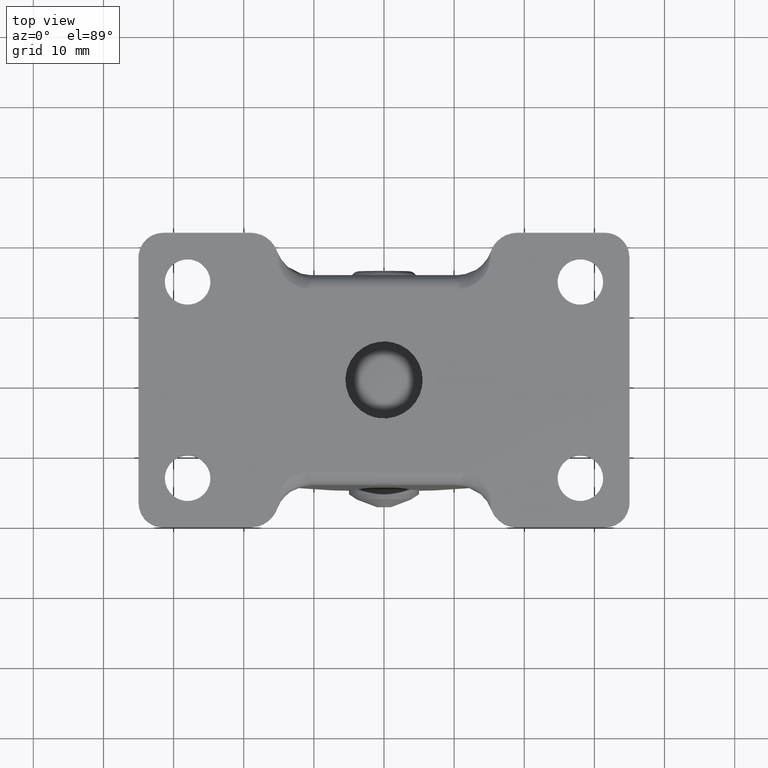
[diagram: clean part render]
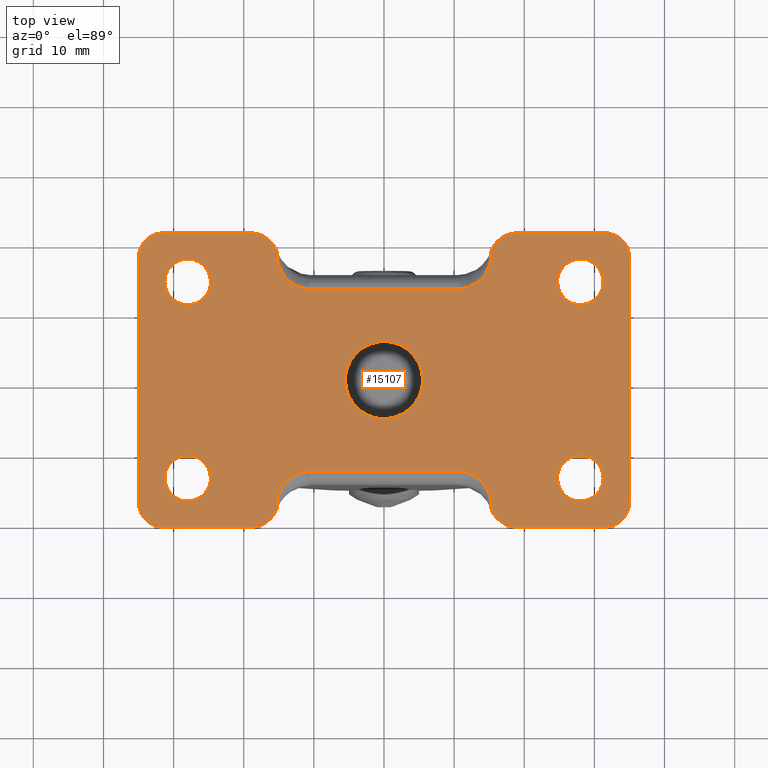
[diagram: same view with one face highlighted and labeled with its STEP entity id]
A machine part, top view. The second image highlights one B-rep face of the part: STEP entity #15107.
In plain terms, the highlighted face is a freeform B-spline surface patch.
Its self-contained STEP definition (entity closure, byte-faithful):
#9672=CARTESIAN_POINT('',(-28.383611263006621,10.772719039362141,54.500000000000000));
#9673=VERTEX_POINT('',#9672);
#9679=CARTESIAN_POINT('',(-24.750000000000000,13.999999999999821,54.500000000000000));
#9680=VERTEX_POINT('',#9679);
#9681=CARTESIAN_POINT('',(-28.383611263006618,10.772719039362146,54.500000000000000));
#9682=CARTESIAN_POINT('',(-28.192478389244791,10.749999999999821,54.500000000000000));
#9683=CARTESIAN_POINT('',(-28.0,10.749999999999821,54.500000000000000));
#9684=CARTESIAN_POINT('',(-24.750000000000000,10.749999999999821,54.500000000000000));
#9685=CARTESIAN_POINT('',(-24.750000000000000,13.999999999999821,54.500000000000000));
#9693=(BOUNDED_CURVE()B_SPLINE_CURVE(2,(#9681,#9682,#9683,#9684,#9685),.UNSPECIFIED.,.F.,.U.)B_SPLINE_CURVE_WITH_KNOTS((3,2,3),(0.229562473476667,0.250000000000000,0.500000000000000),.UNSPECIFIED.)CURVE()GEOMETRIC_REPRESENTATION_ITEM()RATIONAL_B_SPLINE_CURVE((0.956026754111489,0.976055948287983,1.0,0.707106781186547,1.0))REPRESENTATION_ITEM(''));
#9694=EDGE_CURVE('',#9673,#9680,#9693,.T.);
#9696=CARTESIAN_POINT('',(-27.801592246369129,17.243938094862170,54.500000000000000));
#9697=VERTEX_POINT('',#9696);
#9698=CARTESIAN_POINT('',(-24.750000000000000,13.999999999999821,54.500000000000000));
#9699=CARTESIAN_POINT('',(-24.750000000000004,17.057294717174052,54.500000000000007));
#9700=CARTESIAN_POINT('',(-27.801592246369129,17.243938094862163,54.500000000000000));
#9708=(BOUNDED_CURVE()B_SPLINE_CURVE(2,(#9698,#9699,#9700),.UNSPECIFIED.,.F.,.U.)B_SPLINE_CURVE_WITH_KNOTS((3,3),(0.500000000000000,0.739332962226799),.UNSPECIFIED.)CURVE()GEOMETRIC_REPRESENTATION_ITEM()RATIONAL_B_SPLINE_CURVE((1.0,0.719603993300937,0.976072041640692))REPRESENTATION_ITEM(''));
#9709=EDGE_CURVE('',#9680,#9697,#9708,.T.);
#9783=CARTESIAN_POINT('',(-31.250000000000000,13.999999999999821,54.500000000000000));
#9784=VERTEX_POINT('',#9783);
#9785=CARTESIAN_POINT('',(-27.801592246369122,17.243938094862166,54.499999999999993));
#9786=CARTESIAN_POINT('',(-27.900703519136602,17.249999999999822,54.499999999999993));
#9787=CARTESIAN_POINT('',(-28.0,17.249999999999819,54.500000000000000));
#9788=CARTESIAN_POINT('',(-31.250000000000004,17.249999999999826,54.500000000000000));
#9789=CARTESIAN_POINT('',(-31.250000000000000,13.999999999999821,54.500000000000000));
#9797=(BOUNDED_CURVE()B_SPLINE_CURVE(2,(#9785,#9786,#9787,#9788,#9789),.UNSPECIFIED.,.F.,.U.)B_SPLINE_CURVE_WITH_KNOTS((3,2,3),(0.739332962226800,0.750000000000000,1.0),.UNSPECIFIED.)CURVE()GEOMETRIC_REPRESENTATION_ITEM()RATIONAL_B_SPLINE_CURVE((0.976072041640693,0.987502787885611,1.0,0.707106781186547,1.0))REPRESENTATION_ITEM(''));
#9798=EDGE_CURVE('',#9697,#9784,#9797,.T.);
#9800=CARTESIAN_POINT('',(-31.250000000000000,13.999999999999821,54.500000000000000));
#9801=CARTESIAN_POINT('',(-31.250000000000000,11.113432791328290,54.500000000000000));
#9802=CARTESIAN_POINT('',(-28.383611263006618,10.772719039362146,54.500000000000000));
#9810=(BOUNDED_CURVE()B_SPLINE_CURVE(2,(#9800,#9801,#9802),.UNSPECIFIED.,.F.,.U.)B_SPLINE_CURVE_WITH_KNOTS((3,3),(0.0,0.229562473476667),.UNSPECIFIED.)CURVE()GEOMETRIC_REPRESENTATION_ITEM()RATIONAL_B_SPLINE_CURVE((1.0,0.731050832898565,0.956026754111489))REPRESENTATION_ITEM(''));
#9811=EDGE_CURVE('',#9784,#9673,#9810,.T.);
#9858=CARTESIAN_POINT('',(-0.649188295266815,-5.461552394446890,54.500000000000000));
#9859=VERTEX_POINT('',#9858);
#9865=CARTESIAN_POINT('',(5.500000000000000,0.0,54.500000000000000));
#9866=VERTEX_POINT('',#9865);
#9867=CARTESIAN_POINT('',(-0.649188295266815,-5.461552394446890,54.500000000000000));
#9868=CARTESIAN_POINT('',(-0.325732662789357,-5.500000000000000,54.500000000000007));
#9869=CARTESIAN_POINT('',(0.0,-5.500000000000000,54.500000000000000));
#9870=CARTESIAN_POINT('',(5.500000000000001,-5.500000000000001,54.500000000000014));
#9871=CARTESIAN_POINT('',(5.500000000000000,0.0,54.500000000000000));
#9879=(BOUNDED_CURVE()B_SPLINE_CURVE(2,(#9867,#9868,#9869,#9870,#9871),.UNSPECIFIED.,.F.,.U.)B_SPLINE_CURVE_WITH_KNOTS((3,2,3),(0.229562473227576,0.250000000000000,0.500000000000000),.UNSPECIFIED.)CURVE()GEOMETRIC_REPRESENTATION_ITEM()RATIONAL_B_SPLINE_CURVE((0.956026753623260,0.976055947996154,1.0,0.707106781186548,1.0))REPRESENTATION_ITEM(''));
#9880=EDGE_CURVE('',#9859,#9866,#9879,.T.);
#9882=CARTESIAN_POINT('',(0.335766967678533,5.489741391305784,54.500000000000000));
#9883=VERTEX_POINT('',#9882);
#9884=CARTESIAN_POINT('',(5.500000000000000,0.0,54.500000000000000));
#9885=CARTESIAN_POINT('',(5.500000000000001,5.173883367534092,54.500000000000014));
#9886=CARTESIAN_POINT('',(0.335766967678533,5.489741391305784,54.500000000000000));
#9894=(BOUNDED_CURVE()B_SPLINE_CURVE(2,(#9884,#9885,#9886),.UNSPECIFIED.,.F.,.U.)B_SPLINE_CURVE_WITH_KNOTS((3,3),(0.500000000000000,0.739332962227081),.UNSPECIFIED.)CURVE()GEOMETRIC_REPRESENTATION_ITEM()RATIONAL_B_SPLINE_CURVE((1.0,0.719603993300607,0.976072041641296))REPRESENTATION_ITEM(''));
#9895=EDGE_CURVE('',#9866,#9883,#9894,.T.);
#9969=CARTESIAN_POINT('',(-5.500000000000000,0.0,54.500000000000000));
#9970=VERTEX_POINT('',#9969);
#9971=CARTESIAN_POINT('',(0.335766967678533,5.489741391305784,54.500000000000000));
#9972=CARTESIAN_POINT('',(0.168040198379723,5.500000000000001,54.500000000000007));
#9973=CARTESIAN_POINT('',(0.0,5.500000000000000,54.500000000000000));
#9974=CARTESIAN_POINT('',(-5.500000000000001,5.500000000000001,54.500000000000014));
#9975=CARTESIAN_POINT('',(-5.500000000000000,0.0,54.500000000000000));
#9983=(BOUNDED_CURVE()B_SPLINE_CURVE(2,(#9971,#9972,#9973,#9974,#9975),.UNSPECIFIED.,.F.,.U.)B_SPLINE_CURVE_WITH_KNOTS((3,2,3),(0.739332962227081,0.750000000000000,1.0),.UNSPECIFIED.)CURVE()GEOMETRIC_REPRESENTATION_ITEM()RATIONAL_B_SPLINE_CURVE((0.976072041641296,0.987502787885941,1.0,0.707106781186548,1.0))REPRESENTATION_ITEM(''));
#9984=EDGE_CURVE('',#9883,#9970,#9983,.T.);
#9986=CARTESIAN_POINT('',(-5.500000000000000,0.0,54.500000000000000));
#9987=CARTESIAN_POINT('',(-5.500000000000001,-4.884959884347427,54.500000000000007));
#9988=CARTESIAN_POINT('',(-0.649188295266815,-5.461552394446890,54.500000000000000));
#9996=(BOUNDED_CURVE()B_SPLINE_CURVE(2,(#9986,#9987,#9988),.UNSPECIFIED.,.F.,.U.)B_SPLINE_CURVE_WITH_KNOTS((3,3),(0.0,0.229562473227576),.UNSPECIFIED.)CURVE()GEOMETRIC_REPRESENTATION_ITEM()RATIONAL_B_SPLINE_CURVE((1.0,0.731050833190393,0.956026753623260))REPRESENTATION_ITEM(''));
#9997=EDGE_CURVE('',#9970,#9859,#9996,.T.);
#10044=CARTESIAN_POINT('',(27.616388736993379,10.772719039362141,54.500000000000000));
#10045=VERTEX_POINT('',#10044);
#10051=CARTESIAN_POINT('',(31.250000000000000,13.999999999999821,54.500000000000000));
#10052=VERTEX_POINT('',#10051);
#10053=CARTESIAN_POINT('',(27.616388736993382,10.772719039362146,54.500000000000000));
#10054=CARTESIAN_POINT('',(27.807521610755206,10.749999999999821,54.500000000000000));
#10055=CARTESIAN_POINT('',(28.0,10.749999999999821,54.500000000000000));
#10056=CARTESIAN_POINT('',(31.250000000000004,10.749999999999821,54.500000000000000));
#10057=CARTESIAN_POINT('',(31.250000000000000,13.999999999999821,54.500000000000000));
#10065=(BOUNDED_CURVE()B_SPLINE_CURVE(2,(#10053,#10054,#10055,#10056,#10057),.UNSPECIFIED.,.F.,.U.)B_SPLINE_CURVE_WITH_KNOTS((3,2,3),(0.229562473476667,0.250000000000000,0.500000000000000),.UNSPECIFIED.)CURVE()GEOMETRIC_REPRESENTATION_ITEM()RATIONAL_B_SPLINE_CURVE((0.956026754111489,0.976055948287983,1.0,0.707106781186547,1.0))REPRESENTATION_ITEM(''));
#10066=EDGE_CURVE('',#10045,#10052,#10065,.T.);
#10068=CARTESIAN_POINT('',(28.198407753630882,17.243938094862170,54.500000000000000));
#10069=VERTEX_POINT('',#10068);
#10070=CARTESIAN_POINT('',(31.250000000000000,13.999999999999821,54.500000000000000));
#10071=CARTESIAN_POINT('',(31.250000000000000,17.057294717174052,54.500000000000007));
#10072=CARTESIAN_POINT('',(28.198407753630878,17.243938094862163,54.500000000000000));
#10080=(BOUNDED_CURVE()B_SPLINE_CURVE(2,(#10070,#10071,#10072),.UNSPECIFIED.,.F.,.U.)B_SPLINE_CURVE_WITH_KNOTS((3,3),(0.500000000000000,0.739332962226799),.UNSPECIFIED.)CURVE()GEOMETRIC_REPRESENTATION_ITEM()RATIONAL_B_SPLINE_CURVE((1.0,0.719603993300937,0.976072041640692))REPRESENTATION_ITEM(''));
#10081=EDGE_CURVE('',#10052,#10069,#10080,.T.);
#10155=CARTESIAN_POINT('',(24.750000000000000,13.999999999999821,54.500000000000000));
#10156=VERTEX_POINT('',#10155);
#10157=CARTESIAN_POINT('',(28.198407753630878,17.243938094862166,54.499999999999993));
#10158=CARTESIAN_POINT('',(28.099296480863401,17.249999999999822,54.499999999999993));
#10159=CARTESIAN_POINT('',(28.0,17.249999999999819,54.500000000000000));
#10160=CARTESIAN_POINT('',(24.750000000000000,17.249999999999826,54.500000000000000));
#10161=CARTESIAN_POINT('',(24.750000000000000,13.999999999999821,54.500000000000000));
#10169=(BOUNDED_CURVE()B_SPLINE_CURVE(2,(#10157,#10158,#10159,#10160,#10161),.UNSPECIFIED.,.F.,.U.)B_SPLINE_CURVE_WITH_KNOTS((3,2,3),(0.739332962226800,0.750000000000000,1.0),.UNSPECIFIED.)CURVE()GEOMETRIC_REPRESENTATION_ITEM()RATIONAL_B_SPLINE_CURVE((0.976072041640693,0.987502787885611,1.0,0.707106781186547,1.0))REPRESENTATION_ITEM(''));
#10170=EDGE_CURVE('',#10069,#10156,#10169,.T.);
#10172=CARTESIAN_POINT('',(24.750000000000000,13.999999999999821,54.500000000000000));
#10173=CARTESIAN_POINT('',(24.749999999999996,11.113432791328291,54.500000000000000));
#10174=CARTESIAN_POINT('',(27.616388736993382,10.772719039362146,54.500000000000000));
#10182=(BOUNDED_CURVE()B_SPLINE_CURVE(2,(#10172,#10173,#10174),.UNSPECIFIED.,.F.,.U.)B_SPLINE_CURVE_WITH_KNOTS((3,3),(0.0,0.229562473476667),.UNSPECIFIED.)CURVE()GEOMETRIC_REPRESENTATION_ITEM()RATIONAL_B_SPLINE_CURVE((1.0,0.731050832898565,0.956026754111489))REPRESENTATION_ITEM(''));
#10183=EDGE_CURVE('',#10156,#10045,#10182,.T.);
#10230=CARTESIAN_POINT('',(27.616388736993379,-17.227280960637682,54.500000000000000));
#10231=VERTEX_POINT('',#10230);
#10237=CARTESIAN_POINT('',(31.250000000000000,-14.0,54.500000000000000));
#10238=VERTEX_POINT('',#10237);
#10239=CARTESIAN_POINT('',(27.616388736993386,-17.227280960637678,54.500000000000000));
#10240=CARTESIAN_POINT('',(27.807521610755209,-17.250000000000000,54.500000000000000));
#10241=CARTESIAN_POINT('',(28.0,-17.250000000000000,54.500000000000000));
#10242=CARTESIAN_POINT('',(31.250000000000004,-17.249999999999996,54.500000000000000));
#10243=CARTESIAN_POINT('',(31.250000000000000,-14.0,54.500000000000000));
#10251=(BOUNDED_CURVE()B_SPLINE_CURVE(2,(#10239,#10240,#10241,#10242,#10243),.UNSPECIFIED.,.F.,.U.)B_SPLINE_CURVE_WITH_KNOTS((3,2,3),(0.229562473476667,0.250000000000000,0.500000000000000),.UNSPECIFIED.)CURVE()GEOMETRIC_REPRESENTATION_ITEM()RATIONAL_B_SPLINE_CURVE((0.956026754111489,0.976055948287983,1.0,0.707106781186547,1.0))REPRESENTATION_ITEM(''));
#10252=EDGE_CURVE('',#10231,#10238,#10251,.T.);
#10254=CARTESIAN_POINT('',(28.198407753630882,-10.756061905137649,54.500000000000000));
#10255=VERTEX_POINT('',#10254);
#10256=CARTESIAN_POINT('',(31.250000000000000,-14.0,54.500000000000000));
#10257=CARTESIAN_POINT('',(31.250000000000000,-10.942705282825770,54.500000000000007));
#10258=CARTESIAN_POINT('',(28.198407753630878,-10.756061905137656,54.500000000000000));
#10266=(BOUNDED_CURVE()B_SPLINE_CURVE(2,(#10256,#10257,#10258),.UNSPECIFIED.,.F.,.U.)B_SPLINE_CURVE_WITH_KNOTS((3,3),(0.500000000000000,0.739332962226799),.UNSPECIFIED.)CURVE()GEOMETRIC_REPRESENTATION_ITEM()RATIONAL_B_SPLINE_CURVE((1.0,0.719603993300937,0.976072041640692))REPRESENTATION_ITEM(''));
#10267=EDGE_CURVE('',#10238,#10255,#10266,.T.);
#10341=CARTESIAN_POINT('',(24.750000000000000,-14.0,54.500000000000000));
#10342=VERTEX_POINT('',#10341);
#10343=CARTESIAN_POINT('',(28.198407753630878,-10.756061905137656,54.499999999999993));
#10344=CARTESIAN_POINT('',(28.099296480863401,-10.750000000000004,54.499999999999993));
#10345=CARTESIAN_POINT('',(28.0,-10.750000000000000,54.500000000000000));
#10346=CARTESIAN_POINT('',(24.750000000000000,-10.750000000000000,54.500000000000000));
#10347=CARTESIAN_POINT('',(24.750000000000000,-14.0,54.500000000000000));
#10355=(BOUNDED_CURVE()B_SPLINE_CURVE(2,(#10343,#10344,#10345,#10346,#10347),.UNSPECIFIED.,.F.,.U.)B_SPLINE_CURVE_WITH_KNOTS((3,2,3),(0.739332962226800,0.750000000000000,1.0),.UNSPECIFIED.)CURVE()GEOMETRIC_REPRESENTATION_ITEM()RATIONAL_B_SPLINE_CURVE((0.976072041640693,0.987502787885611,1.0,0.707106781186547,1.0))REPRESENTATION_ITEM(''));
#10356=EDGE_CURVE('',#10255,#10342,#10355,.T.);
#10358=CARTESIAN_POINT('',(24.750000000000000,-14.0,54.500000000000000));
#10359=CARTESIAN_POINT('',(24.750000000000000,-16.886567208671533,54.500000000000000));
#10360=CARTESIAN_POINT('',(27.616388736993379,-17.227280960637678,54.499999999999993));
#10368=(BOUNDED_CURVE()B_SPLINE_CURVE(2,(#10358,#10359,#10360),.UNSPECIFIED.,.F.,.U.)B_SPLINE_CURVE_WITH_KNOTS((3,3),(0.0,0.229562473476667),.UNSPECIFIED.)CURVE()GEOMETRIC_REPRESENTATION_ITEM()RATIONAL_B_SPLINE_CURVE((1.0,0.731050832898564,0.956026754111489))REPRESENTATION_ITEM(''));
#10369=EDGE_CURVE('',#10342,#10231,#10368,.T.);
#10416=CARTESIAN_POINT('',(-28.383611263006621,-17.227280960637682,54.500000000000000));
#10417=VERTEX_POINT('',#10416);
#10423=CARTESIAN_POINT('',(-24.750000000000000,-14.0,54.500000000000000));
#10424=VERTEX_POINT('',#10423);
#10425=CARTESIAN_POINT('',(-28.383611263006621,-17.227280960637678,54.499999999999993));
#10426=CARTESIAN_POINT('',(-28.192478389244798,-17.250000000000004,54.500000000000007));
#10427=CARTESIAN_POINT('',(-28.0,-17.250000000000000,54.500000000000000));
#10428=CARTESIAN_POINT('',(-24.750000000000000,-17.249999999999996,54.500000000000000));
#10429=CARTESIAN_POINT('',(-24.750000000000000,-14.0,54.500000000000000));
#10437=(BOUNDED_CURVE()B_SPLINE_CURVE(2,(#10425,#10426,#10427,#10428,#10429),.UNSPECIFIED.,.F.,.U.)B_SPLINE_CURVE_WITH_KNOTS((3,2,3),(0.229562473476667,0.250000000000000,0.500000000000000),.UNSPECIFIED.)CURVE()GEOMETRIC_REPRESENTATION_ITEM()RATIONAL_B_SPLINE_CURVE((0.956026754111489,0.976055948287983,1.0,0.707106781186547,1.0))REPRESENTATION_ITEM(''));
#10438=EDGE_CURVE('',#10417,#10424,#10437,.T.);
#10440=CARTESIAN_POINT('',(-27.801592246369129,-10.756061905137649,54.500000000000000));
#10441=VERTEX_POINT('',#10440);
#10442=CARTESIAN_POINT('',(-24.750000000000000,-14.0,54.500000000000000));
#10443=CARTESIAN_POINT('',(-24.750000000000004,-10.942705282825770,54.500000000000007));
#10444=CARTESIAN_POINT('',(-27.801592246369129,-10.756061905137656,54.500000000000000));
#10452=(BOUNDED_CURVE()B_SPLINE_CURVE(2,(#10442,#10443,#10444),.UNSPECIFIED.,.F.,.U.)B_SPLINE_CURVE_WITH_KNOTS((3,3),(0.500000000000000,0.739332962226799),.UNSPECIFIED.)CURVE()GEOMETRIC_REPRESENTATION_ITEM()RATIONAL_B_SPLINE_CURVE((1.0,0.719603993300937,0.976072041640692))REPRESENTATION_ITEM(''));
#10453=EDGE_CURVE('',#10424,#10441,#10452,.T.);
#10527=CARTESIAN_POINT('',(-31.250000000000000,-14.0,54.500000000000000));
#10528=VERTEX_POINT('',#10527);
#10529=CARTESIAN_POINT('',(-27.801592246369122,-10.756061905137656,54.499999999999993));
#10530=CARTESIAN_POINT('',(-27.900703519136602,-10.750000000000004,54.499999999999993));
#10531=CARTESIAN_POINT('',(-28.0,-10.750000000000000,54.500000000000000));
#10532=CARTESIAN_POINT('',(-31.250000000000004,-10.750000000000000,54.500000000000000));
#10533=CARTESIAN_POINT('',(-31.250000000000000,-14.0,54.500000000000000));
#10541=(BOUNDED_CURVE()B_SPLINE_CURVE(2,(#10529,#10530,#10531,#10532,#10533),.UNSPECIFIED.,.F.,.U.)B_SPLINE_CURVE_WITH_KNOTS((3,2,3),(0.739332962226800,0.750000000000000,1.0),.UNSPECIFIED.)CURVE()GEOMETRIC_REPRESENTATION_ITEM()RATIONAL_B_SPLINE_CURVE((0.976072041640693,0.987502787885611,1.0,0.707106781186547,1.0))REPRESENTATION_ITEM(''));
#10542=EDGE_CURVE('',#10441,#10528,#10541,.T.);
#10544=CARTESIAN_POINT('',(-31.250000000000000,-14.0,54.500000000000000));
#10545=CARTESIAN_POINT('',(-31.250000000000004,-16.886567208671533,54.500000000000000));
#10546=CARTESIAN_POINT('',(-28.383611263006618,-17.227280960637682,54.500000000000000));
#10554=(BOUNDED_CURVE()B_SPLINE_CURVE(2,(#10544,#10545,#10546),.UNSPECIFIED.,.F.,.U.)B_SPLINE_CURVE_WITH_KNOTS((3,3),(0.0,0.229562473476667),.UNSPECIFIED.)CURVE()GEOMETRIC_REPRESENTATION_ITEM()RATIONAL_B_SPLINE_CURVE((1.0,0.731050832898564,0.956026754111489))REPRESENTATION_ITEM(''));
#10555=EDGE_CURVE('',#10528,#10417,#10554,.T.);
#12311=CARTESIAN_POINT('',(-15.228765913306200,18.333339215413350,54.500000000000000));
#12312=VERTEX_POINT('',#12311);
#12340=CARTESIAN_POINT('',(-10.514711081367540,13.0,54.500000000000000));
#12341=VERTEX_POINT('',#12340);
#12342=CARTESIAN_POINT('',(-10.514711081367540,13.0,54.500000000000000));
#12343=CARTESIAN_POINT('',(-11.581971825455341,13.000214138864351,54.500000000000000));
#12344=CARTESIAN_POINT('',(-12.580773533342651,13.499428649971261,54.500000000000000));
#12345=CARTESIAN_POINT('',(-13.540841397550929,13.979283465672310,54.500000000000000));
#12346=CARTESIAN_POINT('',(-14.195327010071420,14.794834309048600,54.500000000000000));
#12347=CARTESIAN_POINT('',(-14.810590144845690,15.561510243346190,54.500000000000000));
#12348=CARTESIAN_POINT('',(-15.079617698688660,16.539096097954811,54.500000000000000));
#12349=CARTESIAN_POINT('',(-15.329726715057991,17.447936226112748,54.500000000000000));
#12350=CARTESIAN_POINT('',(-15.228765913306200,18.333339215413350,54.500000000000000));
#12351=B_SPLINE_CURVE_WITH_KNOTS('',2,(#12342,#12343,#12344,#12345,#12346,#12347,#12348,#12349,#12350),.UNSPECIFIED.,.F.,.U.,(3,2,2,2,3),(0.0,0.250000000000000,0.500000000000000,0.750000000000000,1.0),.UNSPECIFIED.);
#12352=EDGE_CURVE('',#12341,#12312,#12351,.T.);
#12380=CARTESIAN_POINT('',(10.514709999999999,13.0,54.500000000000000));
#12381=VERTEX_POINT('',#12380);
#12403=CARTESIAN_POINT('',(10.514709999999999,13.0,54.500000000000000));
#12404=CARTESIAN_POINT('',(-10.514711081367540,13.0,54.500000000000000));
#12405=QUASI_UNIFORM_CURVE('',1,(#12403,#12404),.UNSPECIFIED.,.F.,.U.);
#12406=EDGE_CURVE('',#12381,#12341,#12405,.T.);
#12437=CARTESIAN_POINT('',(15.228760706250251,18.333348183459801,54.500000000000000));
#12438=VERTEX_POINT('',#12437);
#12439=CARTESIAN_POINT('',(15.228760706250251,18.333348183459801,54.500000000000000));
#12440=CARTESIAN_POINT('',(15.329635687253081,17.448708875707322,54.500000000000007));
#12441=CARTESIAN_POINT('',(15.079614982359850,16.539104090093200,54.500000000000000));
#12442=CARTESIAN_POINT('',(14.811309808526740,15.562978251923850,54.500000000000000));
#12443=CARTESIAN_POINT('',(14.195326207737100,14.794840124324359,54.500000000000000));
#12444=CARTESIAN_POINT('',(13.542195608990760,13.980379293620720,54.500000000000000));
#12445=CARTESIAN_POINT('',(12.580773310062300,13.499431567280499,54.500000000000000));
#12446=CARTESIAN_POINT('',(11.582832560932880,13.000215629756520,54.500000000000000));
#12447=CARTESIAN_POINT('',(10.514709999999999,13.0,54.500000000000000));
#12448=B_SPLINE_CURVE_WITH_KNOTS('',2,(#12439,#12440,#12441,#12442,#12443,#12444,#12445,#12446,#12447),.UNSPECIFIED.,.F.,.U.,(3,2,2,2,3),(0.000000014380785,0.250000000000000,0.500000000000000,0.750000000000000,1.0),.UNSPECIFIED.);
#12449=EDGE_CURVE('',#12438,#12381,#12448,.T.);
#12505=CARTESIAN_POINT('',(-10.514711081367521,-13.0,54.500000000000000));
#12506=VERTEX_POINT('',#12505);
#12516=CARTESIAN_POINT('',(-15.228764935478599,-18.333332562780399,54.500000000000000));
#12517=VERTEX_POINT('',#12516);
#12518=CARTESIAN_POINT('',(-15.228764935478599,-18.333332562780399,54.500000000000000));
#12519=CARTESIAN_POINT('',(-15.329637651343401,-17.448694153979350,54.500000000000000));
#12520=CARTESIAN_POINT('',(-15.079615267566449,-16.539091237617800,54.500000000000000));
#12521=CARTESIAN_POINT('',(-14.811308303795320,-15.562967448061100,54.500000000000000));
#12522=CARTESIAN_POINT('',(-14.195324224741700,-14.794831651059340,54.500000000000000));
#12523=CARTESIAN_POINT('',(-13.542193115301000,-13.980373287025619,54.500000000000000));
#12524=CARTESIAN_POINT('',(-12.580771690475119,-13.499427844222479,54.500000000000000));
#12525=CARTESIAN_POINT('',(-11.582831831504880,-13.000214268396180,54.500000000000000));
#12526=CARTESIAN_POINT('',(-10.514711081367521,-13.0,54.500000000000000));
#12527=B_SPLINE_CURVE_WITH_KNOTS('',2,(#12518,#12519,#12520,#12521,#12522,#12523,#12524,#12525,#12526),.UNSPECIFIED.,.F.,.U.,(3,2,2,2,3),(0.0,0.250000000000000,0.500000000000000,0.750000000000000,1.0),.UNSPECIFIED.);
#12528=EDGE_CURVE('',#12517,#12506,#12527,.T.);
#12571=CARTESIAN_POINT('',(10.514709999999999,-13.0,54.500000000000000));
#12572=VERTEX_POINT('',#12571);
#12586=CARTESIAN_POINT('',(-10.514711081367521,-13.0,54.500000000000000));
#12587=CARTESIAN_POINT('',(10.514709999999999,-13.0,54.500000000000000));
#12588=QUASI_UNIFORM_CURVE('',1,(#12586,#12587),.UNSPECIFIED.,.F.,.U.);
#12589=EDGE_CURVE('',#12506,#12572,#12588,.T.);
#12626=CARTESIAN_POINT('',(15.228760485757951,-18.333348261415651,54.500000000000000));
#12627=VERTEX_POINT('',#12626);
#12653=CARTESIAN_POINT('',(10.514709999999999,-13.0,54.500000000000000));
#12654=CARTESIAN_POINT('',(11.581971513306099,-13.000215455932620,54.500000000000000));
#12655=CARTESIAN_POINT('',(12.580773310062540,-13.499431567280720,54.500000000000000));
#12656=CARTESIAN_POINT('',(13.540841265657040,-13.979287924145799,54.500000000000000));
#12657=CARTESIAN_POINT('',(14.195326207737541,-14.794840124324679,54.500000000000000));
#12658=CARTESIAN_POINT('',(14.810588713461300,-15.561517335622350,54.500000000000000));
#12659=CARTESIAN_POINT('',(15.079614982360299,-16.539104090093801,54.500000000000000));
#12660=CARTESIAN_POINT('',(15.329722805398101,-17.447945059386949,54.500000000000000));
#12661=CARTESIAN_POINT('',(15.228760485757951,-18.333348261415651,54.500000000000000));
#12662=B_SPLINE_CURVE_WITH_KNOTS('',2,(#12653,#12654,#12655,#12656,#12657,#12658,#12659,#12660,#12661),.UNSPECIFIED.,.F.,.U.,(3,2,2,2,3),(0.0,0.250000000000000,0.500000000000000,0.750000000000000,1.0),.UNSPECIFIED.);
#12663=EDGE_CURVE('',#12572,#12627,#12662,.T.);
#13986=CARTESIAN_POINT('',(18.989575114206499,-21.0,54.500000000000000));
#13987=VERTEX_POINT('',#13986);
#13993=CARTESIAN_POINT('',(15.228760485757951,-18.333348261415651,54.500000000000000));
#13994=CARTESIAN_POINT('',(16.168967375558246,-20.992651369762061,54.499999999999993));
#13995=CARTESIAN_POINT('',(18.989575114206499,-21.0,54.500000000000000));
#14003=(BOUNDED_CURVE()B_SPLINE_CURVE(2,(#13993,#13994,#13995),.UNSPECIFIED.,.F.,.U.)CURVE()GEOMETRIC_REPRESENTATION_ITEM()QUASI_UNIFORM_CURVE()RATIONAL_B_SPLINE_CURVE((1.0,0.817248079286618,1.0))REPRESENTATION_ITEM(''));
#14004=EDGE_CURVE('',#12627,#13987,#14003,.T.);
#14023=CARTESIAN_POINT('',(-19.0,-21.0,54.500000000000000));
#14024=VERTEX_POINT('',#14023);
#14032=CARTESIAN_POINT('',(-19.0,-21.0,54.500000000000000));
#14033=CARTESIAN_POINT('',(-16.171573216614878,-20.999999784059309,54.500000000000000));
#14034=CARTESIAN_POINT('',(-15.228764935478599,-18.333332562780399,54.500000000000000));
#14042=(BOUNDED_CURVE()B_SPLINE_CURVE(2,(#14032,#14033,#14034),.UNSPECIFIED.,.F.,.U.)CURVE()GEOMETRIC_REPRESENTATION_ITEM()QUASI_UNIFORM_CURVE()RATIONAL_B_SPLINE_CURVE((1.0,0.816496555003584,1.0))REPRESENTATION_ITEM(''));
#14043=EDGE_CURVE('',#14024,#12517,#14042,.T.);
#14135=CARTESIAN_POINT('',(18.989575114143950,21.0,54.500000000000000));
#14136=VERTEX_POINT('',#14135);
#14137=CARTESIAN_POINT('',(18.989575114143950,20.999999999999979,54.500000000000000));
#14138=CARTESIAN_POINT('',(16.168967375542664,20.992651369717915,54.500000000000007));
#14139=CARTESIAN_POINT('',(15.228760706250270,18.333348183459790,54.500000000000000));
#14147=(BOUNDED_CURVE()B_SPLINE_CURVE(2,(#14137,#14138,#14139),.UNSPECIFIED.,.F.,.U.)CURVE()GEOMETRIC_REPRESENTATION_ITEM()QUASI_UNIFORM_CURVE()RATIONAL_B_SPLINE_CURVE((1.0,0.817248079291126,1.0))REPRESENTATION_ITEM(''));
#14148=EDGE_CURVE('',#14136,#12438,#14147,.T.);
#14174=CARTESIAN_POINT('',(-19.0,21.0,54.500000000000000));
#14175=VERTEX_POINT('',#14174);
#14181=CARTESIAN_POINT('',(-15.228765913306241,18.333339215413339,54.500000000000000));
#14182=CARTESIAN_POINT('',(-16.171577554418512,21.0,54.500000000000000));
#14183=CARTESIAN_POINT('',(-19.0,21.0,54.500000000000000));
#14191=(BOUNDED_CURVE()B_SPLINE_CURVE(2,(#14181,#14182,#14183),.UNSPECIFIED.,.F.,.U.)CURVE()GEOMETRIC_REPRESENTATION_ITEM()QUASI_UNIFORM_CURVE()RATIONAL_B_SPLINE_CURVE((1.0,0.816497031180559,1.0))REPRESENTATION_ITEM(''));
#14192=EDGE_CURVE('',#12312,#14175,#14191,.T.);
#14416=CARTESIAN_POINT('',(-31.500000000000000,-21.0,54.500000000000000));
#14417=VERTEX_POINT('',#14416);
#14418=CARTESIAN_POINT('',(-19.0,-21.0,54.500000000000000));
#14419=CARTESIAN_POINT('',(-31.500000000000000,-21.0,54.500000000000000));
#14420=QUASI_UNIFORM_CURVE('',1,(#14418,#14419),.UNSPECIFIED.,.F.,.U.);
#14421=EDGE_CURVE('',#14024,#14417,#14420,.T.);
#14677=CARTESIAN_POINT('',(-31.499998900442598,21.0,54.500000000000000));
#14678=VERTEX_POINT('',#14677);
#14685=CARTESIAN_POINT('',(-35.0,17.500000000000000,54.500000000000000));
#14686=VERTEX_POINT('',#14685);
#14692=CARTESIAN_POINT('',(-31.499998900442598,21.0,54.500000000000000));
#14693=CARTESIAN_POINT('',(-32.949746690801277,21.000000455451517,54.500000000000000));
#14694=CARTESIAN_POINT('',(-33.974873345400631,19.974874122905138,54.500000000000000));
#14695=CARTESIAN_POINT('',(-35.0,18.949747790358749,54.500000000000000));
#14696=CARTESIAN_POINT('',(-35.0,17.500000000000000,54.500000000000000));
#14704=(BOUNDED_CURVE()B_SPLINE_CURVE(2,(#14692,#14693,#14694,#14695,#14696),.UNSPECIFIED.,.F.,.U.)B_SPLINE_CURVE_WITH_KNOTS((3,2,3),(0.0,0.500000000000000,1.0),.UNSPECIFIED.)CURVE()GEOMETRIC_REPRESENTATION_ITEM()RATIONAL_B_SPLINE_CURVE((1.0,0.923879502455398,1.0,0.923879502455398,1.0))REPRESENTATION_ITEM(''));
#14705=EDGE_CURVE('',#14678,#14686,#14704,.T.);
#14724=CARTESIAN_POINT('',(-35.0,-17.499998778269600,54.500000000000000));
#14725=VERTEX_POINT('',#14724);
#14733=CARTESIAN_POINT('',(-35.0,-17.499998778269600,54.500000000000000));
#14734=CARTESIAN_POINT('',(-35.000000506057212,-18.949746604411910,54.500000000000007));
#14735=CARTESIAN_POINT('',(-33.974874166099802,-19.974873302205960,54.500000000000000));
#14736=CARTESIAN_POINT('',(-32.949747826142392,-21.0,54.500000000000007));
#14737=CARTESIAN_POINT('',(-31.500000000000000,-21.0,54.500000000000000));
#14745=(BOUNDED_CURVE()B_SPLINE_CURVE(2,(#14733,#14734,#14735,#14736,#14737),.UNSPECIFIED.,.F.,.U.)B_SPLINE_CURVE_WITH_KNOTS((3,2,3),(0.0,0.500000000000000,1.0),.UNSPECIFIED.)CURVE()GEOMETRIC_REPRESENTATION_ITEM()RATIONAL_B_SPLINE_CURVE((1.0,0.923879499115856,1.0,0.923879499115856,1.0))REPRESENTATION_ITEM(''));
#14746=EDGE_CURVE('',#14725,#14417,#14745,.T.);
#14765=CARTESIAN_POINT('',(31.500000000000000,-21.0,54.500000000000000));
#14766=VERTEX_POINT('',#14765);
#14773=CARTESIAN_POINT('',(35.0,-17.500000000000000,54.500000000000000));
#14774=VERTEX_POINT('',#14773);
#14780=CARTESIAN_POINT('',(31.500000000000000,-21.0,54.500000000000000));
#14781=CARTESIAN_POINT('',(35.0,-21.000000000000007,54.500000000000000));
#14782=CARTESIAN_POINT('',(35.0,-17.500000000000000,54.500000000000000));
#14790=(BOUNDED_CURVE()B_SPLINE_CURVE(2,(#14780,#14781,#14782),.UNSPECIFIED.,.F.,.U.)CURVE()GEOMETRIC_REPRESENTATION_ITEM()QUASI_UNIFORM_CURVE()RATIONAL_B_SPLINE_CURVE((1.0,0.707106781186547,1.0))REPRESENTATION_ITEM(''));
#14791=EDGE_CURVE('',#14766,#14774,#14790,.T.);
#14810=CARTESIAN_POINT('',(35.0,17.500000000000000,54.500000000000000));
#14811=VERTEX_POINT('',#14810);
#14818=CARTESIAN_POINT('',(31.500000000000000,21.0,54.500000000000000));
#14819=VERTEX_POINT('',#14818);
#14825=CARTESIAN_POINT('',(35.0,17.500000000000000,54.500000000000000));
#14826=CARTESIAN_POINT('',(35.0,21.000000000000007,54.500000000000000));
#14827=CARTESIAN_POINT('',(31.500000000000000,21.0,54.500000000000000));
#14835=(BOUNDED_CURVE()B_SPLINE_CURVE(2,(#14825,#14826,#14827),.UNSPECIFIED.,.F.,.U.)CURVE()GEOMETRIC_REPRESENTATION_ITEM()QUASI_UNIFORM_CURVE()RATIONAL_B_SPLINE_CURVE((1.0,0.707106781186547,1.0))REPRESENTATION_ITEM(''));
#14836=EDGE_CURVE('',#14811,#14819,#14835,.T.);
#14848=CARTESIAN_POINT('',(-35.0,-17.499998778269600,54.500000000000000));
#14849=CARTESIAN_POINT('',(-35.0,17.500000000000000,54.500000000000000));
#14850=QUASI_UNIFORM_CURVE('',1,(#14848,#14849),.UNSPECIFIED.,.F.,.U.);
#14851=EDGE_CURVE('',#14725,#14686,#14850,.T.);
#14864=CARTESIAN_POINT('',(35.0,17.500000000000000,54.500000000000000));
#14865=CARTESIAN_POINT('',(35.0,-17.500000000000000,54.500000000000000));
#14866=QUASI_UNIFORM_CURVE('',1,(#14864,#14865),.UNSPECIFIED.,.F.,.U.);
#14867=EDGE_CURVE('',#14811,#14774,#14866,.T.);
#14879=CARTESIAN_POINT('',(18.989575114143950,21.0,54.500000000000000));
#14880=CARTESIAN_POINT('',(31.500000000000000,21.0,54.500000000000000));
#14881=QUASI_UNIFORM_CURVE('',1,(#14879,#14880),.UNSPECIFIED.,.F.,.U.);
#14882=EDGE_CURVE('',#14136,#14819,#14881,.T.);
#14903=CARTESIAN_POINT('',(-31.499998900442598,21.0,54.500000000000000));
#14904=CARTESIAN_POINT('',(-19.0,21.0,54.500000000000000));
#14905=QUASI_UNIFORM_CURVE('',1,(#14903,#14904),.UNSPECIFIED.,.F.,.U.);
#14906=EDGE_CURVE('',#14678,#14175,#14905,.T.);
#14982=CARTESIAN_POINT('',(31.500000000000000,-21.0,54.500000000000000));
#14983=CARTESIAN_POINT('',(18.989575114206499,-21.0,54.500000000000000));
#14984=QUASI_UNIFORM_CURVE('',1,(#14982,#14983),.UNSPECIFIED.,.F.,.U.);
#14985=EDGE_CURVE('',#14766,#13987,#14984,.T.);
#15050=CARTESIAN_POINT('',(-38.496499864326417,23.097899918595861,54.500000000000000));
#15051=CARTESIAN_POINT('',(38.496501741872727,23.097899918595861,54.500000000000000));
#15052=CARTESIAN_POINT('',(-38.496499864326417,-23.097901045123638,54.500000000000000));
#15053=CARTESIAN_POINT('',(38.496501741872727,-23.097901045123638,54.500000000000000));
#15054=B_SPLINE_SURFACE_WITH_KNOTS('',1,1,((#15050,#15052),(#15051,#15053)),.UNSPECIFIED.,.F.,.F.,.U.,(2,2),(2,2),(0.0,76.993001606199158),(0.0,46.195800963719492),.UNSPECIFIED.);
#15055=ORIENTED_EDGE('',*,*,#12406,.T.);
#15056=ORIENTED_EDGE('',*,*,#12352,.T.);
#15057=ORIENTED_EDGE('',*,*,#14192,.T.);
#15058=ORIENTED_EDGE('',*,*,#14906,.F.);
#15059=ORIENTED_EDGE('',*,*,#14705,.T.);
#15060=ORIENTED_EDGE('',*,*,#14851,.F.);
#15061=ORIENTED_EDGE('',*,*,#14746,.T.);
#15062=ORIENTED_EDGE('',*,*,#14421,.F.);
#15063=ORIENTED_EDGE('',*,*,#14043,.T.);
#15064=ORIENTED_EDGE('',*,*,#12528,.T.);
#15065=ORIENTED_EDGE('',*,*,#12589,.T.);
#15066=ORIENTED_EDGE('',*,*,#12663,.T.);
#15067=ORIENTED_EDGE('',*,*,#14004,.T.);
#15068=ORIENTED_EDGE('',*,*,#14985,.F.);
#15069=ORIENTED_EDGE('',*,*,#14791,.T.);
#15070=ORIENTED_EDGE('',*,*,#14867,.F.);
#15071=ORIENTED_EDGE('',*,*,#14836,.T.);
#15072=ORIENTED_EDGE('',*,*,#14882,.F.);
#15073=ORIENTED_EDGE('',*,*,#14148,.T.);
#15074=ORIENTED_EDGE('',*,*,#12449,.T.);
#15075=EDGE_LOOP('',(#15055,#15056,#15057,#15058,#15059,#15060,#15061,#15062,#15063,#15064,#15065,#15066,#15067,#15068,#15069,#15070,#15071,#15072,#15073,#15074));
#15076=FACE_OUTER_BOUND('',#15075,.T.);
#15077=ORIENTED_EDGE('',*,*,#10453,.F.);
#15078=ORIENTED_EDGE('',*,*,#10438,.F.);
#15079=ORIENTED_EDGE('',*,*,#10555,.F.);
#15080=ORIENTED_EDGE('',*,*,#10542,.F.);
#15081=EDGE_LOOP('',(#15077,#15078,#15079,#15080));
#15082=FACE_BOUND('',#15081,.T.);
#15083=ORIENTED_EDGE('',*,*,#10267,.F.);
#15084=ORIENTED_EDGE('',*,*,#10252,.F.);
#15085=ORIENTED_EDGE('',*,*,#10369,.F.);
#15086=ORIENTED_EDGE('',*,*,#10356,.F.);
#15087=EDGE_LOOP('',(#15083,#15084,#15085,#15086));
#15088=FACE_BOUND('',#15087,.T.);
#15089=ORIENTED_EDGE('',*,*,#10081,.F.);
#15090=ORIENTED_EDGE('',*,*,#10066,.F.);
#15091=ORIENTED_EDGE('',*,*,#10183,.F.);
#15092=ORIENTED_EDGE('',*,*,#10170,.F.);
#15093=EDGE_LOOP('',(#15089,#15090,#15091,#15092));
#15094=FACE_BOUND('',#15093,.T.);
#15095=ORIENTED_EDGE('',*,*,#9895,.F.);
#15096=ORIENTED_EDGE('',*,*,#9880,.F.);
#15097=ORIENTED_EDGE('',*,*,#9997,.F.);
#15098=ORIENTED_EDGE('',*,*,#9984,.F.);
#15099=EDGE_LOOP('',(#15095,#15096,#15097,#15098));
#15100=FACE_BOUND('',#15099,.T.);
#15101=ORIENTED_EDGE('',*,*,#9709,.F.);
#15102=ORIENTED_EDGE('',*,*,#9694,.F.);
#15103=ORIENTED_EDGE('',*,*,#9811,.F.);
#15104=ORIENTED_EDGE('',*,*,#9798,.F.);
#15105=EDGE_LOOP('',(#15101,#15102,#15103,#15104));
#15106=FACE_BOUND('',#15105,.T.);
#15107=ADVANCED_FACE('',(#15076,#15082,#15088,#15094,#15100,#15106),#15054,.F.);